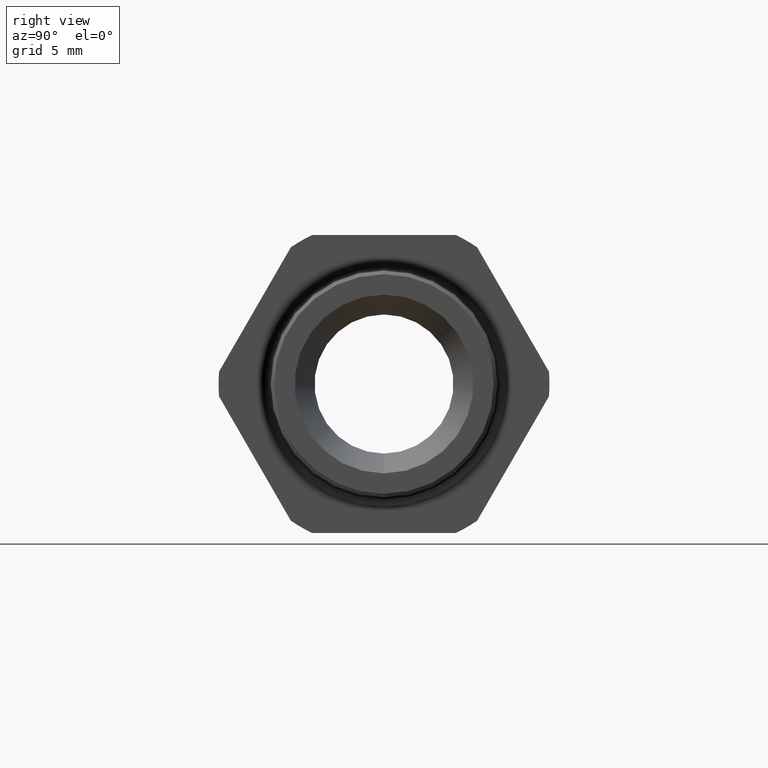
[diagram: clean part render]
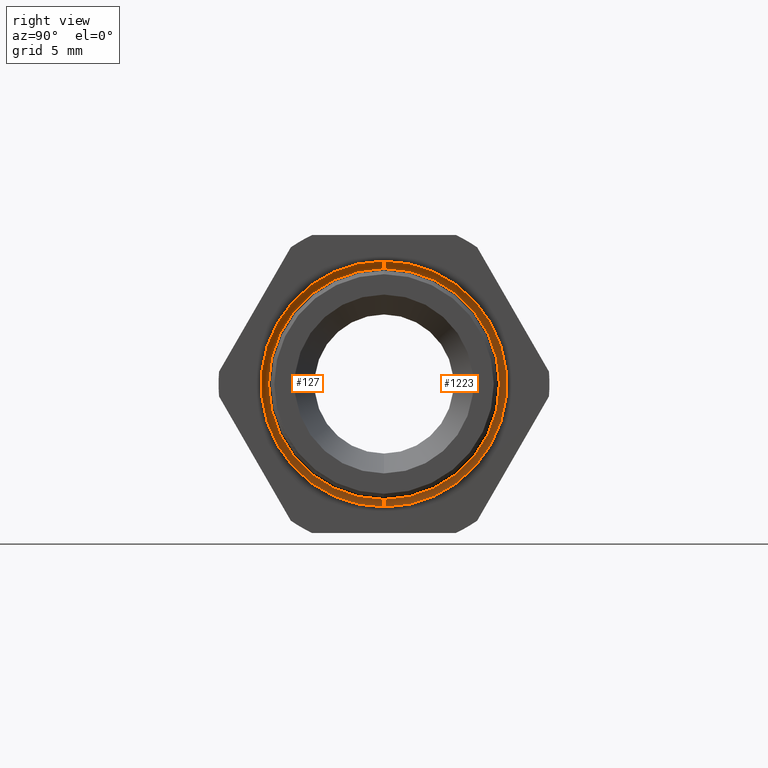
[diagram: same view with one multi-face feature highlighted, each face labeled with its STEP entity id]
A machine part, right view. The highlighted faces form ONE feature: a constant-radius fillet chain: 2 tangent blend faces with common blend radius 0.5715 mm. The faces share edges in the B-rep.
Their STEP definitions:
[1] entity #127 (Torus):
#80 = VERTEX_POINT ( 'NONE', #1410 ) ;
#123 = EDGE_CURVE ( 'NONE', #151, #80, #1465, .T. ) ;
#127 = ADVANCED_FACE ( 'NONE', ( #1517 ), #1516, .F. ) ;
#128 = EDGE_LOOP ( 'NONE', ( #129, #130, #187, #190 ) ) ;
#129 = ORIENTED_EDGE ( 'NONE', *, *, #123, .F. ) ;
#130 = ORIENTED_EDGE ( 'NONE', *, *, #131, .T. ) ;
#131 = EDGE_CURVE ( 'NONE', #151, #132, #1510, .T. ) ;
#132 = VERTEX_POINT ( 'NONE', #1506 ) ;
#151 = VERTEX_POINT ( 'NONE', #1534 ) ;
#187 = ORIENTED_EDGE ( 'NONE', *, *, #188, .F. ) ;
#188 = EDGE_CURVE ( 'NONE', #189, #132, #1646, .T. ) ;
#189 = VERTEX_POINT ( 'NONE', #1641 ) ;
#190 = ORIENTED_EDGE ( 'NONE', *, *, #191, .F. ) ;
#191 = EDGE_CURVE ( 'NONE', #80, #189, #1639, .T. ) ;
#1410 = CARTESIAN_POINT ( 'NONE',  ( -0.3089999999999999400, 0.0000000000000000000, -0.2641514333516842300 ) ) ;
#1465 = CIRCLE ( 'NONE', #1526, 0.2641514333516842800 ) ;
#1506 = CARTESIAN_POINT ( 'NONE',  ( -0.3100000000000000000, 3.785740854801557200E-017, 0.3091292001446733200 ) ) ;
#1507 = DIRECTION ( 'NONE',  ( 0.0000000000000000000, 1.224646799147352700E-016, 1.000000000000000000 ) ) ;
#1508 = DIRECTION ( 'NONE',  ( 0.0000000000000000000, 1.000000000000000000, -1.224646799147353200E-016 ) ) ;
#1509 = AXIS2_PLACEMENT_3D ( 'NONE', #1515, #1508, #1507 ) ;
#1510 = CIRCLE ( 'NONE', #1509, 0.02250000000000003400 ) ;
#1511 = DIRECTION ( 'NONE',  ( 0.0000000000000000000, 0.0000000000000000000, -1.000000000000000000 ) ) ;
#1512 = DIRECTION ( 'NONE',  ( 1.000000000000000000, 0.0000000000000000000, 0.0000000000000000000 ) ) ;
#1513 = CARTESIAN_POINT ( 'NONE',  ( -0.3089999999999999400, 0.0000000000000000000, 0.0000000000000000000 ) ) ;
#1514 = AXIS2_PLACEMENT_3D ( 'NONE', #1513, #1512, #1511 ) ;
#1515 = CARTESIAN_POINT ( 'NONE',  ( -0.3089999999999999400, 3.510467603251410100E-017, 0.2866514333516843000 ) ) ;
#1516 = TOROIDAL_SURFACE ( 'NONE', #1514, 0.2866514333516843000, 0.02250000000000001300 ) ;
#1517 = FACE_OUTER_BOUND ( 'NONE', #128, .T. ) ;
#1523 = DIRECTION ( 'NONE',  ( 0.0000000000000000000, 0.0000000000000000000, -1.000000000000000000 ) ) ;
#1524 = DIRECTION ( 'NONE',  ( 1.000000000000000000, 0.0000000000000000000, 0.0000000000000000000 ) ) ;
#1525 = CARTESIAN_POINT ( 'NONE',  ( -0.3089999999999999400, 0.0000000000000000000, 0.0000000000000000000 ) ) ;
#1526 = AXIS2_PLACEMENT_3D ( 'NONE', #1525, #1524, #1523 ) ;
#1534 = CARTESIAN_POINT ( 'NONE',  ( -0.3089999999999999400, 3.234922073443255600E-017, 0.2641514333516842300 ) ) ;
#1635 = DIRECTION ( 'NONE',  ( 0.0000000000000000000, 0.0000000000000000000, -1.000000000000000000 ) ) ;
#1636 = DIRECTION ( 'NONE',  ( 0.0000000000000000000, -1.000000000000000000, 0.0000000000000000000 ) ) ;
#1637 = CARTESIAN_POINT ( 'NONE',  ( -0.3089999999999999400, 0.0000000000000000000, -0.2866514333516843000 ) ) ;
#1638 = AXIS2_PLACEMENT_3D ( 'NONE', #1637, #1636, #1635 ) ;
#1639 = CIRCLE ( 'NONE', #1638, 0.02250000000000003400 ) ;
#1641 = CARTESIAN_POINT ( 'NONE',  ( -0.3100000000000000000, 0.0000000000000000000, -0.3091292001446733200 ) ) ;
#1642 = DIRECTION ( 'NONE',  ( 0.0000000000000000000, 0.0000000000000000000, -1.000000000000000000 ) ) ;
#1643 = DIRECTION ( 'NONE',  ( -1.000000000000000000, 0.0000000000000000000, 0.0000000000000000000 ) ) ;
#1644 = CARTESIAN_POINT ( 'NONE',  ( -0.3100000000000000000, 0.0000000000000000000, 0.0000000000000000000 ) ) ;
#1645 = AXIS2_PLACEMENT_3D ( 'NONE', #1644, #1643, #1642 ) ;
#1646 = CIRCLE ( 'NONE', #1645, 0.3091292001446733200 ) ;
[2] entity #1223 (Torus):
#80 = VERTEX_POINT ( 'NONE', #1410 ) ;
#131 = EDGE_CURVE ( 'NONE', #151, #132, #1510, .T. ) ;
#132 = VERTEX_POINT ( 'NONE', #1506 ) ;
#150 = EDGE_CURVE ( 'NONE', #80, #151, #1538, .T. ) ;
#151 = VERTEX_POINT ( 'NONE', #1534 ) ;
#189 = VERTEX_POINT ( 'NONE', #1641 ) ;
#191 = EDGE_CURVE ( 'NONE', #80, #189, #1639, .T. ) ;
#553 = EDGE_CURVE ( 'NONE', #132, #189, #2328, .T. ) ;
#1223 = ADVANCED_FACE ( 'NONE', ( #3458 ), #3457, .F. ) ;
#1224 = EDGE_LOOP ( 'NONE', ( #1225, #1226, #1227, #1228 ) ) ;
#1225 = ORIENTED_EDGE ( 'NONE', *, *, #150, .F. ) ;
#1226 = ORIENTED_EDGE ( 'NONE', *, *, #191, .T. ) ;
#1227 = ORIENTED_EDGE ( 'NONE', *, *, #553, .F. ) ;
#1228 = ORIENTED_EDGE ( 'NONE', *, *, #131, .F. ) ;
#1410 = CARTESIAN_POINT ( 'NONE',  ( -0.3089999999999999400, 0.0000000000000000000, -0.2641514333516842300 ) ) ;
#1506 = CARTESIAN_POINT ( 'NONE',  ( -0.3100000000000000000, 3.785740854801557200E-017, 0.3091292001446733200 ) ) ;
#1507 = DIRECTION ( 'NONE',  ( 0.0000000000000000000, 1.224646799147352700E-016, 1.000000000000000000 ) ) ;
#1508 = DIRECTION ( 'NONE',  ( 0.0000000000000000000, 1.000000000000000000, -1.224646799147353200E-016 ) ) ;
#1509 = AXIS2_PLACEMENT_3D ( 'NONE', #1515, #1508, #1507 ) ;
#1510 = CIRCLE ( 'NONE', #1509, 0.02250000000000003400 ) ;
#1515 = CARTESIAN_POINT ( 'NONE',  ( -0.3089999999999999400, 3.510467603251410100E-017, 0.2866514333516843000 ) ) ;
#1534 = CARTESIAN_POINT ( 'NONE',  ( -0.3089999999999999400, 3.234922073443255600E-017, 0.2641514333516842300 ) ) ;
#1535 = DIRECTION ( 'NONE',  ( 0.0000000000000000000, 0.0000000000000000000, -1.000000000000000000 ) ) ;
#1536 = DIRECTION ( 'NONE',  ( 1.000000000000000000, 0.0000000000000000000, 0.0000000000000000000 ) ) ;
#1537 = AXIS2_PLACEMENT_3D ( 'NONE', #1544, #1536, #1535 ) ;
#1538 = CIRCLE ( 'NONE', #1537, 0.2641514333516842800 ) ;
#1544 = CARTESIAN_POINT ( 'NONE',  ( -0.3089999999999999400, 0.0000000000000000000, 0.0000000000000000000 ) ) ;
#1635 = DIRECTION ( 'NONE',  ( 0.0000000000000000000, 0.0000000000000000000, -1.000000000000000000 ) ) ;
#1636 = DIRECTION ( 'NONE',  ( 0.0000000000000000000, -1.000000000000000000, 0.0000000000000000000 ) ) ;
#1637 = CARTESIAN_POINT ( 'NONE',  ( -0.3089999999999999400, 0.0000000000000000000, -0.2866514333516843000 ) ) ;
#1638 = AXIS2_PLACEMENT_3D ( 'NONE', #1637, #1636, #1635 ) ;
#1639 = CIRCLE ( 'NONE', #1638, 0.02250000000000003400 ) ;
#1641 = CARTESIAN_POINT ( 'NONE',  ( -0.3100000000000000000, 0.0000000000000000000, -0.3091292001446733200 ) ) ;
#2325 = DIRECTION ( 'NONE',  ( 0.0000000000000000000, 0.0000000000000000000, -1.000000000000000000 ) ) ;
#2326 = DIRECTION ( 'NONE',  ( -1.000000000000000000, 0.0000000000000000000, 0.0000000000000000000 ) ) ;
#2327 = AXIS2_PLACEMENT_3D ( 'NONE', #2334, #2326, #2325 ) ;
#2328 = CIRCLE ( 'NONE', #2327, 0.3091292001446733200 ) ;
#2334 = CARTESIAN_POINT ( 'NONE',  ( -0.3100000000000000000, 0.0000000000000000000, 0.0000000000000000000 ) ) ;
#3454 = DIRECTION ( 'NONE',  ( 0.0000000000000000000, 0.0000000000000000000, -1.000000000000000000 ) ) ;
#3455 = DIRECTION ( 'NONE',  ( 1.000000000000000000, 0.0000000000000000000, 0.0000000000000000000 ) ) ;
#3456 = AXIS2_PLACEMENT_3D ( 'NONE', #3462, #3455, #3454 ) ;
#3457 = TOROIDAL_SURFACE ( 'NONE', #3456, 0.2866514333516843000, 0.02250000000000001300 ) ;
#3458 = FACE_OUTER_BOUND ( 'NONE', #1224, .T. ) ;
#3462 = CARTESIAN_POINT ( 'NONE',  ( -0.3089999999999999400, 0.0000000000000000000, 0.0000000000000000000 ) ) ;